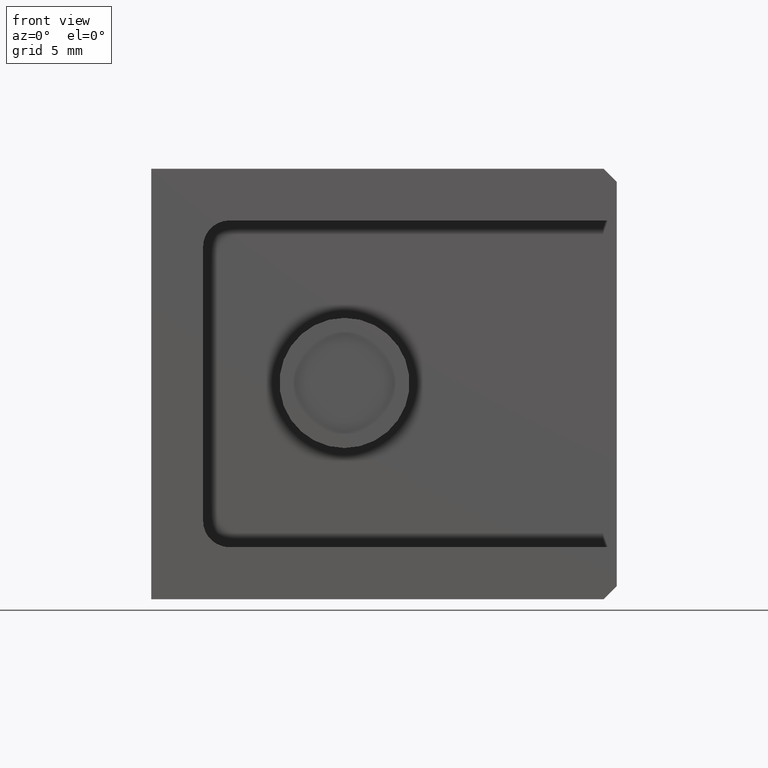
[diagram: clean part render]
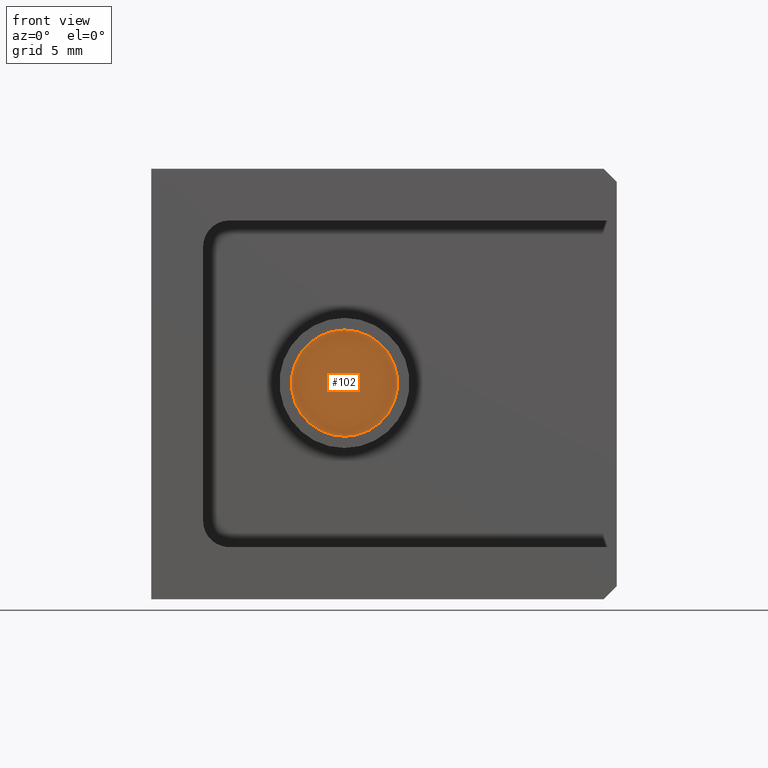
[diagram: same view with one face highlighted and labeled with its STEP entity id]
A machine part, front view. The second image highlights one B-rep face of the part: STEP entity #102.
In plain terms, the highlighted planar face has unit normal (0, -1, 0).
Its self-contained STEP definition (entity closure, byte-faithful):
#6 = EDGE_LOOP ( 'NONE', ( #938, #1219 ) ) ;
#22 = CIRCLE ( 'NONE', #827, 0.1209868787758390800 ) ;
#102 = ADVANCED_FACE ( 'NONE', ( #2311 ), #2160, .T. ) ;
#132 = DIRECTION ( 'NONE',  ( 0.0000000000000000000, 0.0000000000000000000, 1.000000000000000000 ) ) ;
#203 = DIRECTION ( 'NONE',  ( 0.0000000000000000000, -1.000000000000000000, 0.0000000000000000000 ) ) ;
#271 = VERTEX_POINT ( 'NONE', #484 ) ;
#318 = CARTESIAN_POINT ( 'NONE',  ( -0.08226717110593155500, 0.01750000000000001900, 0.0000000000000000000 ) ) ;
#386 = EDGE_CURVE ( 'NONE', #271, #2437, #1052, .T. ) ;
#399 = DIRECTION ( 'NONE',  ( 0.0000000000000000000, 0.0000000000000000000, 1.000000000000000000 ) ) ;
#484 = CARTESIAN_POINT ( 'NONE',  ( -0.08226717110593155500, 0.01750000000000001900, 0.1209868787758390800 ) ) ;
#529 = DIRECTION ( 'NONE',  ( -0.0000000000000000000, 1.000000000000000000, -0.0000000000000000000 ) ) ;
#827 = AXIS2_PLACEMENT_3D ( 'NONE', #318, #1858, #132 ) ;
#938 = ORIENTED_EDGE ( 'NONE', *, *, #386, .F. ) ;
#1052 = CIRCLE ( 'NONE', #1602, 0.1209868787758390800 ) ;
#1219 = ORIENTED_EDGE ( 'NONE', *, *, #1692, .F. ) ;
#1375 = CARTESIAN_POINT ( 'NONE',  ( -0.08226717110593155500, 0.01750000000000001900, 0.0000000000000000000 ) ) ;
#1437 = AXIS2_PLACEMENT_3D ( 'NONE', #1375, #203, #399 ) ;
#1602 = AXIS2_PLACEMENT_3D ( 'NONE', #1705, #529, #2080 ) ;
#1692 = EDGE_CURVE ( 'NONE', #2437, #271, #22, .T. ) ;
#1705 = CARTESIAN_POINT ( 'NONE',  ( -0.08226717110593155500, 0.01750000000000001900, 0.0000000000000000000 ) ) ;
#1751 = CARTESIAN_POINT ( 'NONE',  ( -0.08226717110593152700, 0.01750000000000001900, -0.1209868787758390800 ) ) ;
#1858 = DIRECTION ( 'NONE',  ( -0.0000000000000000000, 1.000000000000000000, -0.0000000000000000000 ) ) ;
#2080 = DIRECTION ( 'NONE',  ( 0.0000000000000000000, 0.0000000000000000000, 1.000000000000000000 ) ) ;
#2160 = PLANE ( 'NONE',  #1437 ) ;
#2311 = FACE_OUTER_BOUND ( 'NONE', #6, .T. ) ;
#2437 = VERTEX_POINT ( 'NONE', #1751 ) ;